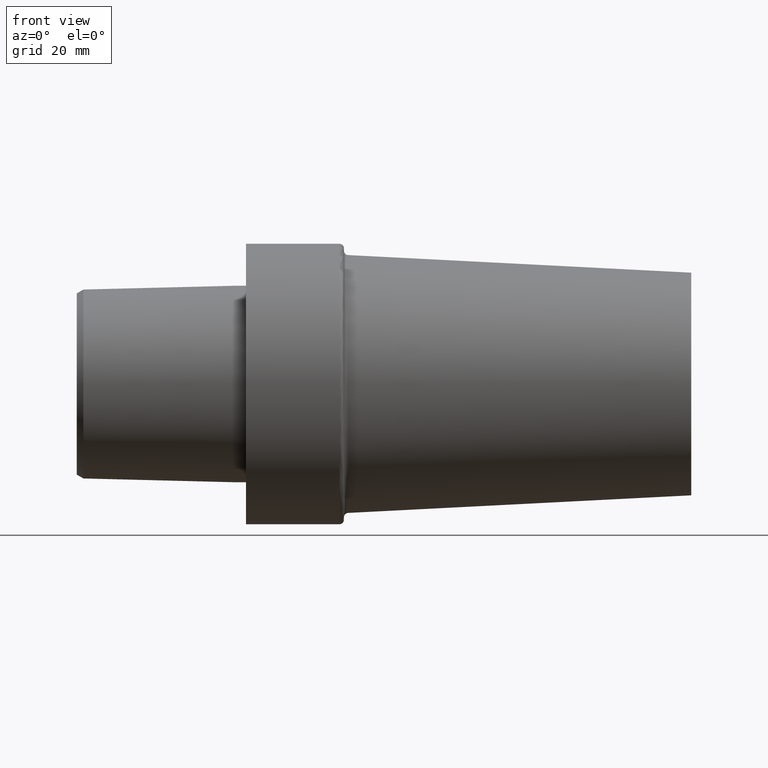
[diagram: clean part render]
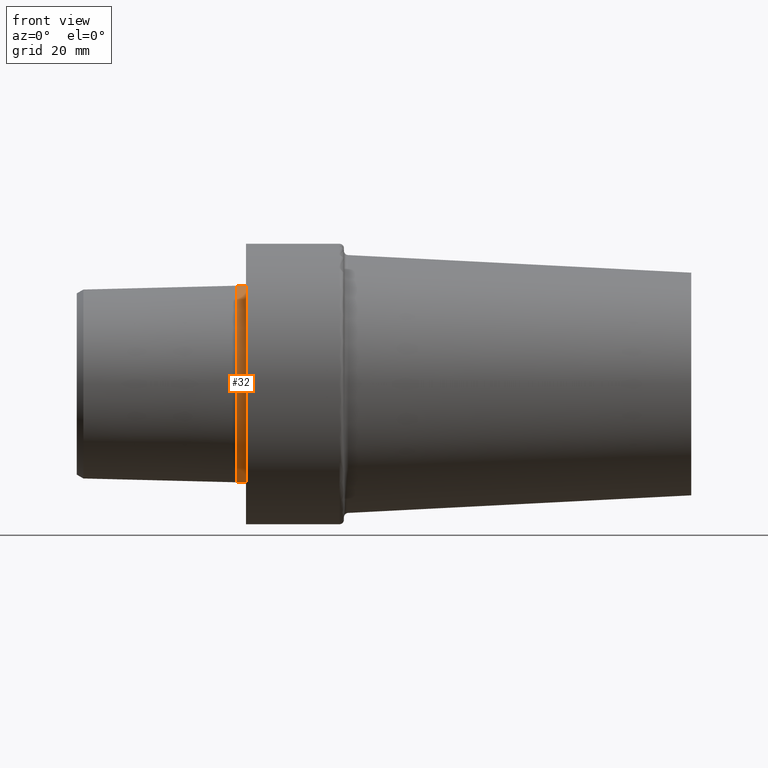
[diagram: same view with one face highlighted and labeled with its STEP entity id]
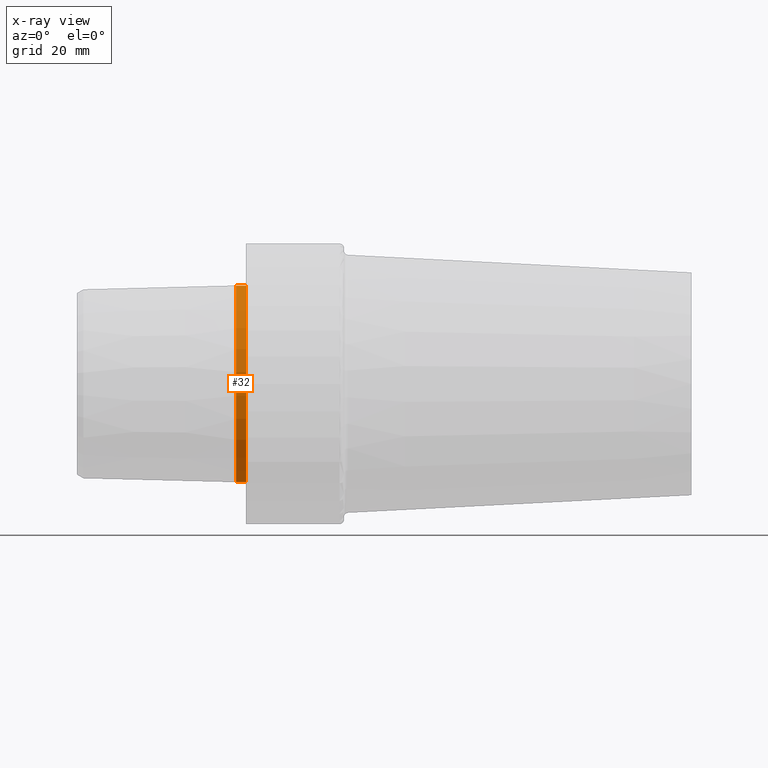
[diagram: x-ray of the same camera — body ghosted, the highlighted face saturated]
A machine part, front view. The second image highlights one B-rep face of the part: STEP entity #32.
The next image is the same camera in x-ray: the body ghosted, the highlighted face saturated — about 0% of this face is hidden behind the body in this view.
In plain terms, the highlighted cylindrical surface (partial cylindrical patch) has radius 22.0708 mm, axis along (-1, 0, 0).
Its self-contained STEP definition (entity closure, byte-faithful):
#9 = CIRCLE ( 'NONE', #79, 22.07078639032614120 ) ;
#29 = VERTEX_POINT ( 'NONE', #107 ) ;
#32 = ADVANCED_FACE ( 'NONE', ( #366 ), #115, .T. ) ;
#51 = CARTESIAN_POINT ( 'NONE',  ( -37.99999996124000035, 0.000000000000000000, 22.07078639032614120 ) ) ;
#66 = EDGE_CURVE ( 'NONE', #223, #305, #457, .T. ) ;
#79 = AXIS2_PLACEMENT_3D ( 'NONE', #486, #264, #176 ) ;
#82 = CARTESIAN_POINT ( 'NONE',  ( -37.99999996124000035, 0.000000000000000000, 0.000000000000000000 ) ) ;
#107 = CARTESIAN_POINT ( 'NONE',  ( -2.199999999394708361, 0.000000000000000000, 22.07078639032614120 ) ) ;
#115 = CYLINDRICAL_SURFACE ( 'NONE', #282, 22.07078639032614120 ) ;
#126 = LINE ( 'NONE', #51, #382 ) ;
#146 = ORIENTED_EDGE ( 'NONE', *, *, #296, .F. ) ;
#154 = CARTESIAN_POINT ( 'NONE',  ( -1.638711037459195739E-09, 0.000000000000000000, 22.07078639032614120 ) ) ;
#169 = DIRECTION ( 'NONE',  ( -1.000000000000000000, 0.000000000000000000, 0.000000000000000000 ) ) ;
#176 = DIRECTION ( 'NONE',  ( 0.000000000000000000, 0.000000000000000000, 1.000000000000000000 ) ) ;
#189 = ORIENTED_EDGE ( 'NONE', *, *, #347, .T. ) ;
#223 = VERTEX_POINT ( 'NONE', #351 ) ;
#240 = DIRECTION ( 'NONE',  ( -1.000000000000000000, 0.000000000000000000, 0.000000000000000000 ) ) ;
#245 = VECTOR ( 'NONE', #254, 1000.000000000000000 ) ;
#248 = DIRECTION ( 'NONE',  ( 0.000000000000000000, 0.000000000000000000, 1.000000000000000000 ) ) ;
#254 = DIRECTION ( 'NONE',  ( -1.000000000000000000, 0.000000000000000000, 0.000000000000000000 ) ) ;
#264 = DIRECTION ( 'NONE',  ( -1.000000000000000000, 0.000000000000000000, 0.000000000000000000 ) ) ;
#282 = AXIS2_PLACEMENT_3D ( 'NONE', #82, #240, #416 ) ;
#296 = EDGE_CURVE ( 'NONE', #223, #483, #371, .T. ) ;
#302 = AXIS2_PLACEMENT_3D ( 'NONE', #463, #169, #248 ) ;
#305 = VERTEX_POINT ( 'NONE', #154 ) ;
#315 = CARTESIAN_POINT ( 'NONE',  ( -2.199999999394708361, 2.702891790757786195E-15, -22.07078639032614120 ) ) ;
#347 = EDGE_CURVE ( 'NONE', #305, #29, #126, .T. ) ;
#351 = CARTESIAN_POINT ( 'NONE',  ( -1.638711037459195739E-09, 2.702891790757786195E-15, -22.07078639032614120 ) ) ;
#366 = FACE_OUTER_BOUND ( 'NONE', #409, .T. ) ;
#371 = LINE ( 'NONE', #529, #245 ) ;
#382 = VECTOR ( 'NONE', #434, 1000.000000000000000 ) ;
#409 = EDGE_LOOP ( 'NONE', ( #146, #478, #189, #469 ) ) ;
#416 = DIRECTION ( 'NONE',  ( 0.000000000000000000, 0.000000000000000000, 1.000000000000000000 ) ) ;
#434 = DIRECTION ( 'NONE',  ( -1.000000000000000000, 0.000000000000000000, 0.000000000000000000 ) ) ;
#457 = CIRCLE ( 'NONE', #302, 22.07078639032614120 ) ;
#463 = CARTESIAN_POINT ( 'NONE',  ( -1.638711037459195739E-09, 0.000000000000000000, 0.000000000000000000 ) ) ;
#469 = ORIENTED_EDGE ( 'NONE', *, *, #482, .F. ) ;
#478 = ORIENTED_EDGE ( 'NONE', *, *, #66, .T. ) ;
#482 = EDGE_CURVE ( 'NONE', #483, #29, #9, .T. ) ;
#483 = VERTEX_POINT ( 'NONE', #315 ) ;
#486 = CARTESIAN_POINT ( 'NONE',  ( -2.199999999394708361, 0.000000000000000000, 0.000000000000000000 ) ) ;
#529 = CARTESIAN_POINT ( 'NONE',  ( -37.99999996124000035, 2.702891790757786195E-15, -22.07078639032614120 ) ) ;